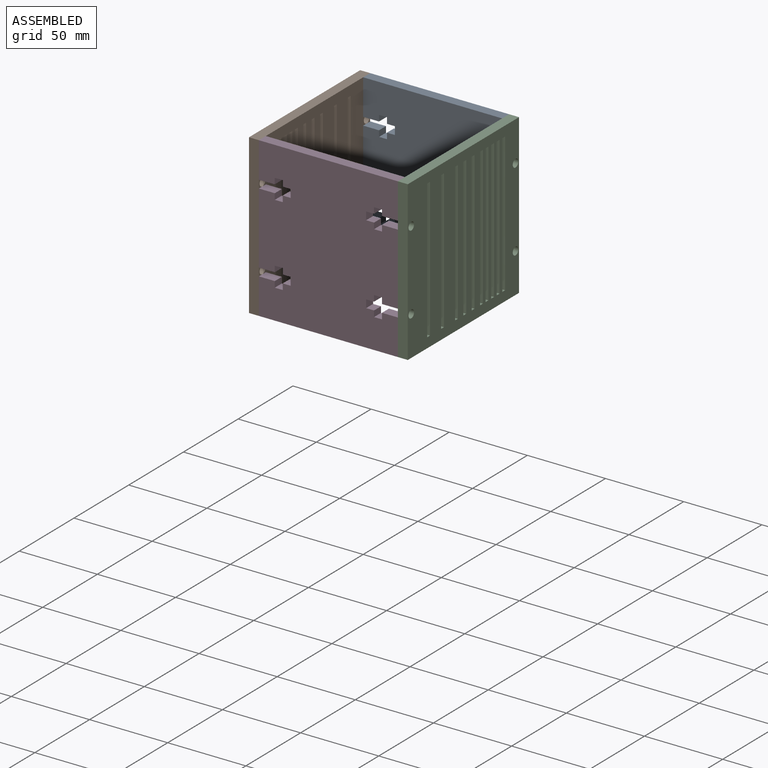
[diagram: assembled view]
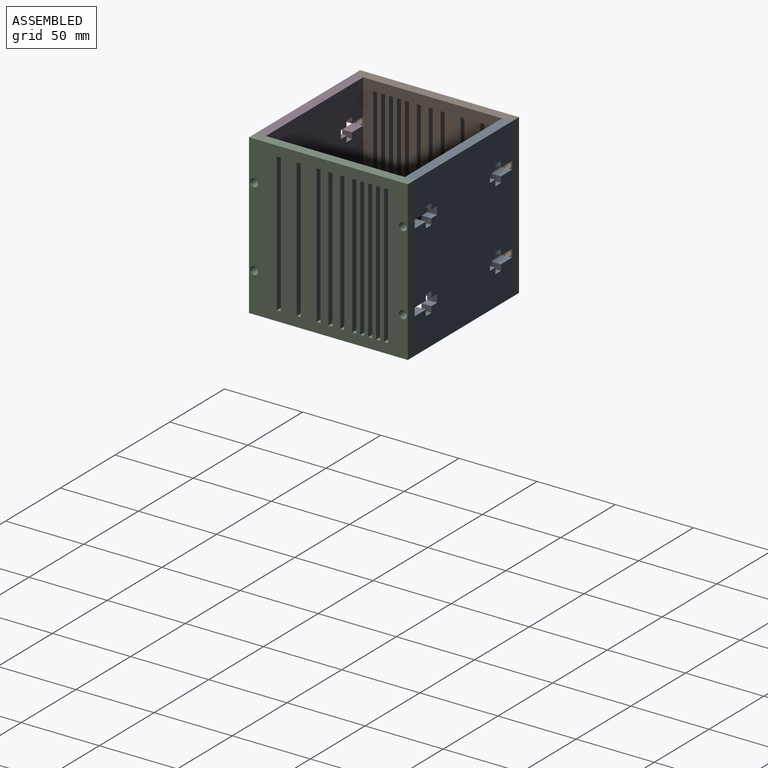
[diagram: assembled view, second angle]
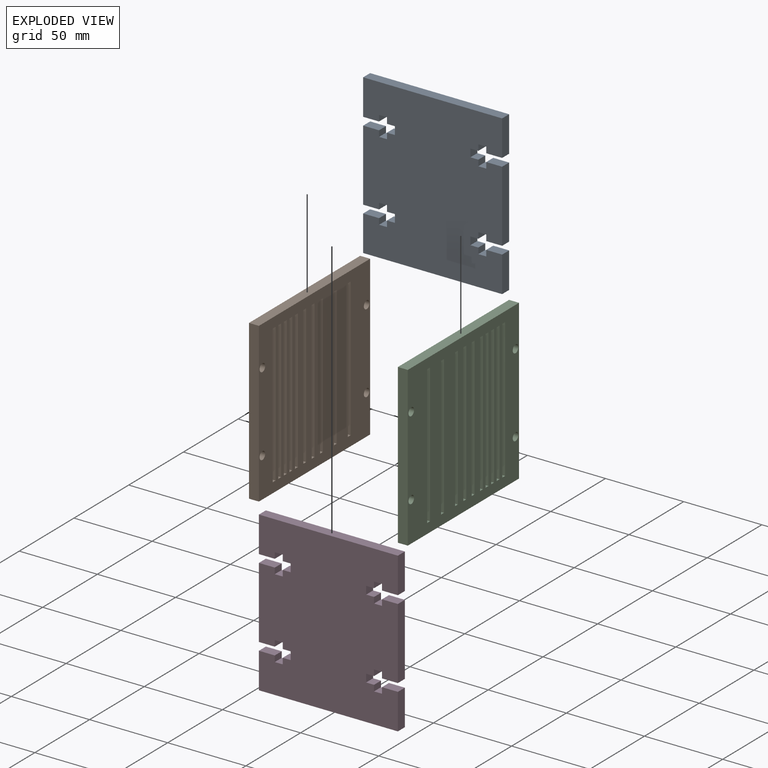
[diagram: exploded view]
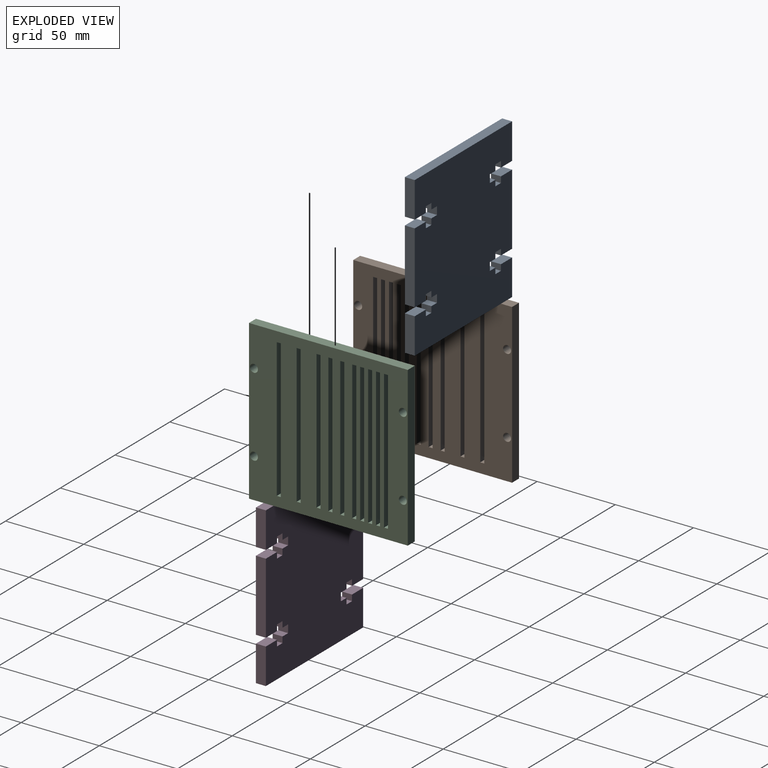
[diagram: exploded view, second angle]
ASSEMBLY  parts=4 mates=3
PART A: 54 faces, bbox 88.9x6.4x101.6 mm
  f0: plane 45.72x6.35mm, normal (1,0,0), area 290.3mm2, adj f1,f51,f52,f53
  f1: plane 10.16x6.35mm, normal (0,0,1), area 64.5mm2, adj f0,f2,f52,f53
  f2: plane 6.35x3.81mm, normal (-1,0,0), area 24.2mm2, adj f1,f3,f52,f53
  f3: plane 6.35x5.08mm, normal (0,0,1), area 32.3mm2, adj f2,f4,f52,f53
  f4: plane 6.35x3.81mm, normal (1,0,0), area 24.2mm2, adj f3,f5,f52,f53
  f5: plane 6.35x5.08mm, normal (0,0,1), area 32.3mm2, adj f4,f6,f52,f53
  f6: plane 6.35x5.08mm, normal (1,0,0), area 32.3mm2, adj f5,f7,f52,f53
  f7: plane 6.35x5.08mm, normal (0,0,-1), area 32.3mm2, adj f6,f8,f52,f53
  f8: plane 6.35x3.81mm, normal (1,0,0), area 24.2mm2, adj f7,f9,f52,f53
  f9: plane 6.35x5.08mm, normal (0,0,-1), area 32.3mm2, adj f8,f10,f52,f53
  f10: plane 6.35x3.81mm, normal (-1,0,0), area 24.2mm2, adj f9,f11,f52,f53
  f11: plane 10.16x6.35mm, normal (0,0,-1), area 64.5mm2, adj f10,f12,f52,f53
  f12: plane 22.86x6.35mm, normal (1,0,0), area 145.2mm2, adj f11,f13,f52,f53
  f13: plane 88.9x6.35mm, normal (0,0,1), area 564.5mm2, adj f12,f14,f52,f53
  f14: plane 22.86x6.35mm, normal (-1,0,0), area 145.2mm2, adj f13,f15,f52,f53
  f15: plane 10.16x6.35mm, normal (0,0,-1), area 64.5mm2, adj f14,f16,f52,f53
  f16: plane 6.35x3.81mm, normal (1,0,0), area 24.2mm2, adj f15,f17,f52,f53
  f17: plane 6.35x5.08mm, normal (0,0,-1), area 32.3mm2, adj f16,f18,f52,f53
  f18: plane 6.35x3.81mm, normal (-1,0,0), area 24.2mm2, adj f17,f19,f52,f53
  f19: plane 6.35x5.08mm, normal (0,0,-1), area 32.3mm2, adj f18,f20,f52,f53
  f20: plane 6.35x5.08mm, normal (-1,0,0), area 32.3mm2, adj f19,f21,f52,f53
  f21: plane 6.35x5.08mm, normal (0,0,1), area 32.3mm2, adj f20,f22,f52,f53
  f22: plane 6.35x3.81mm, normal (-1,0,0), area 24.2mm2, adj f21,f23,f52,f53
  f23: plane 6.35x5.08mm, normal (0,0,1), area 32.3mm2, adj f22,f24,f52,f53
  f24: plane 6.35x3.81mm, normal (1,0,0), area 24.2mm2, adj f23,f25,f52,f53
  f25: plane 10.16x6.35mm, normal (0,0,1), area 64.5mm2, adj f24,f26,f52,f53
  f26: plane 45.72x6.35mm, normal (-1,0,0), area 290.3mm2, adj f25,f27,f52,f53
  f27: plane 10.16x6.35mm, normal (0,0,-1), area 64.5mm2, adj f26,f28,f52,f53
  f28: plane 6.35x3.81mm, normal (1,0,0), area 24.2mm2, adj f27,f29,f52,f53
  f29: plane 6.35x5.08mm, normal (0,0,-1), area 32.3mm2, adj f28,f30,f52,f53
  f30: plane 6.35x3.81mm, normal (-1,0,0), area 24.2mm2, adj f29,f31,f52,f53
  f31: plane 6.35x5.08mm, normal (0,0,-1), area 32.3mm2, adj f30,f32,f52,f53
  f32: plane 6.35x5.08mm, normal (-1,0,0), area 32.3mm2, adj f31,f33,f52,f53
  f33: plane 6.35x5.08mm, normal (0,0,1), area 32.3mm2, adj f32,f34,f52,f53
  f34: plane 6.35x3.81mm, normal (-1,0,0), area 24.2mm2, adj f33,f35,f52,f53
  f35: plane 6.35x5.08mm, normal (0,0,1), area 32.3mm2, adj f34,f36,f52,f53
  f36: plane 6.35x3.81mm, normal (1,0,0), area 24.2mm2, adj f35,f37,f52,f53
  f37: plane 10.16x6.35mm, normal (0,0,1), area 64.5mm2, adj f36,f38,f52,f53
  f38: plane 22.86x6.35mm, normal (-1,0,0), area 145.2mm2, adj f37,f39,f52,f53
  f39: plane 88.9x6.35mm, normal (0,0,-1), area 564.5mm2, adj f38,f40,f52,f53
  f40: plane 22.86x6.35mm, normal (1,0,0), area 145.2mm2, adj f39,f41,f52,f53
  f41: plane 10.16x6.35mm, normal (0,0,1), area 64.5mm2, adj f40,f42,f52,f53
  f42: plane 6.35x3.81mm, normal (-1,0,0), area 24.2mm2, adj f41,f43,f52,f53
  f43: plane 6.35x5.08mm, normal (0,0,1), area 32.3mm2, adj f42,f44,f52,f53
  f44: plane 6.35x3.81mm, normal (1,0,0), area 24.2mm2, adj f43,f45,f52,f53
  f45: plane 6.35x5.08mm, normal (0,0,1), area 32.3mm2, adj f44,f46,f52,f53
  f46: plane 6.35x5.08mm, normal (1,0,0), area 32.3mm2, adj f45,f47,f52,f53
  f47: plane 6.35x5.08mm, normal (0,0,-1), area 32.3mm2, adj f46,f48,f52,f53
  f48: plane 6.35x3.81mm, normal (1,0,0), area 24.2mm2, adj f47,f49,f52,f53
  f49: plane 6.35x5.08mm, normal (0,0,-1), area 32.3mm2, adj f48,f50,f52,f53
  f50: plane 6.35x3.81mm, normal (-1,0,0), area 24.2mm2, adj f49,f51,f52,f53
  f51: plane 10.16x6.35mm, normal (0,0,-1), area 64.5mm2, adj f0,f50,f52,f53
  f52: plane 101.6x88.9mm, normal (0,-1,0), area 8464.5mm2, adj f0,f1,f2,f3,f4,f5,f6,f7
  f53: plane 101.6x88.9mm, normal (0,1,0), area 8464.5mm2, adj f0,f1,f2,f3,f4,f5,f6,f7
PART B: 50 faces, bbox 101.6x101.6x6.4 mm
  f0: plane 101.6x101.6mm, normal (0,0,1), area 7983.4mm2, adj f2,f3,f4,f5,f6,f7,f8,f9
  f1: plane 101.6x101.6mm, normal (0,0,-1), area 7983.4mm2, adj f2,f3,f4,f5,f6,f7,f8,f9
  f2: plane 101.6x6.35mm, normal (-1,0,0), area 645.2mm2, adj f0,f1,f3,f8
  f3: plane 101.6x6.35mm, normal (0,-1,0), area 645.2mm2, adj f0,f1,f2,f4
  f4: plane 101.6x6.35mm, normal (1,0,0), area 645.2mm2, adj f0,f1,f3,f8
  f5: cylinder r=2.54mm len=6.35mm, axis (0,0,-1), area 101.3mm2, adj f0,f1
  f6: cylinder r=2.54mm len=6.35mm, axis (0,0,-1), area 101.3mm2, adj f0,f1
  f7: cylinder r=2.54mm len=6.35mm, axis (0,0,-1), area 101.3mm2, adj f0,f1
  f8: plane 101.6x6.35mm, normal (0,1,0), area 645.2mm2, adj f0,f1,f2,f4
  f9: cylinder r=2.54mm len=6.35mm, axis (0,0,-1), area 101.3mm2, adj f0,f1
  f10: plane 88.9x6.35mm, normal (1,0,0), area 564.5mm2, adj f0,f1,f11,f13
  f11: plane 6.35x2.54mm, normal (0,1,0), area 16.1mm2, adj f0,f1,f10,f12
  f12: plane 88.9x6.35mm, normal (-1,0,0), area 564.5mm2, adj f0,f1,f11,f13
  f13: plane 6.35x2.54mm, normal (0,-1,0), area 16.1mm2, adj f0,f1,f10,f12
  f14: plane 88.9x6.35mm, normal (1,0,0), area 564.5mm2, adj f0,f1,f15,f17
  f15: plane 6.35x2.54mm, normal (0,1,0), area 16.1mm2, adj f0,f1,f14,f16
  f16: plane 88.9x6.35mm, normal (-1,0,0), area 564.5mm2, adj f0,f1,f15,f17
  f17: plane 6.35x2.54mm, normal (0,-1,0), area 16.1mm2, adj f0,f1,f14,f16
  f18: plane 88.9x6.35mm, normal (1,0,0), area 564.5mm2, adj f0,f1,f19,f21
  f19: plane 6.35x2.54mm, normal (0,1,0), area 16.1mm2, adj f0,f1,f18,f20
  f20: plane 88.9x6.35mm, normal (-1,0,0), area 564.5mm2, adj f0,f1,f19,f21
  f21: plane 6.35x2.54mm, normal (0,-1,0), area 16.1mm2, adj f0,f1,f18,f20
  f22: plane 88.9x6.35mm, normal (1,0,0), area 564.5mm2, adj f0,f1,f23,f25
  f23: plane 6.35x2.54mm, normal (0,1,0), area 16.1mm2, adj f0,f1,f22,f24
  f24: plane 88.9x6.35mm, normal (-1,0,0), area 564.5mm2, adj f0,f1,f23,f25
  f25: plane 6.35x2.54mm, normal (0,-1,0), area 16.1mm2, adj f0,f1,f22,f24
  f26: plane 88.9x6.35mm, normal (1,0,0), area 564.5mm2, adj f0,f1,f27,f29
  f27: plane 6.35x2.54mm, normal (0,1,0), area 16.1mm2, adj f0,f1,f26,f28
  f28: plane 88.9x6.35mm, normal (-1,0,0), area 564.5mm2, adj f0,f1,f27,f29
  f29: plane 6.35x2.54mm, normal (0,-1,0), area 16.1mm2, adj f0,f1,f26,f28
  f30: plane 6.35x2.54mm, normal (0,-1,0), area 16.1mm2, adj f0,f1,f31,f33
  f31: plane 88.9x6.35mm, normal (1,0,0), area 564.5mm2, adj f0,f1,f30,f32
  f32: plane 6.35x2.54mm, normal (0,1,0), area 16.1mm2, adj f0,f1,f31,f33
  f33: plane 88.9x6.35mm, normal (-1,0,0), area 564.5mm2, adj f0,f1,f30,f32
  f34: plane 6.35x2.54mm, normal (0,-1,0), area 16.1mm2, adj f0,f1,f35,f37
  f35: plane 88.9x6.35mm, normal (1,0,0), area 564.5mm2, adj f0,f1,f34,f36
  f36: plane 6.35x2.54mm, normal (0,1,0), area 16.1mm2, adj f0,f1,f35,f37
  f37: plane 88.9x6.35mm, normal (-1,0,0), area 564.5mm2, adj f0,f1,f34,f36
  f38: plane 6.35x2.54mm, normal (0,-1,0), area 16.1mm2, adj f0,f1,f39,f41
  f39: plane 88.9x6.35mm, normal (1,0,0), area 564.5mm2, adj f0,f1,f38,f40
  f40: plane 6.35x2.54mm, normal (0,1,0), area 16.1mm2, adj f0,f1,f39,f41
  f41: plane 88.9x6.35mm, normal (-1,0,0), area 564.5mm2, adj f0,f1,f38,f40
  f42: plane 6.35x2.54mm, normal (0,-1,0), area 16.1mm2, adj f0,f1,f43,f45
  f43: plane 88.9x6.35mm, normal (1,0,0), area 564.5mm2, adj f0,f1,f42,f44
  f44: plane 6.35x2.54mm, normal (0,1,0), area 16.1mm2, adj f0,f1,f43,f45
  f45: plane 88.9x6.35mm, normal (-1,0,0), area 564.5mm2, adj f0,f1,f42,f44
  f46: plane 6.35x2.54mm, normal (0,-1,0), area 16.1mm2, adj f0,f1,f47,f49
  f47: plane 88.9x6.35mm, normal (1,0,0), area 564.5mm2, adj f0,f1,f46,f48
  f48: plane 6.35x2.54mm, normal (0,1,0), area 16.1mm2, adj f0,f1,f47,f49
  f49: plane 88.9x6.35mm, normal (-1,0,0), area 564.5mm2, adj f0,f1,f46,f48
PART C: same geometry as B
PART D: same geometry as A
PLACE A rot(axis=(0.06,-0.98,-0.17),0deg) t=(205.14,227.63,-135.92)mm
PLACE B rot(axis=(0.58,0.58,0.58),120deg) t=(198.79,126.03,-135.92)mm
PLACE C rot(axis=(0.58,-0.58,-0.58),120deg) t=(300.39,227.63,-135.92)mm
PLACE D rot(axis=(1,0,0),0deg) t=(205.14,132.38,-135.92)mm
MATE fastened A.f13 <-> C.f8  axis (0,0,1) through (294.04,227.63,-34.32)mm
MATE fastened D.f13 <-> B.f8  axis (0,0,1) through (205.14,126.03,-34.32)mm
MATE fastened B.f8 <-> A.f13  axis (0,0,1) through (205.14,227.63,-34.32)mm
